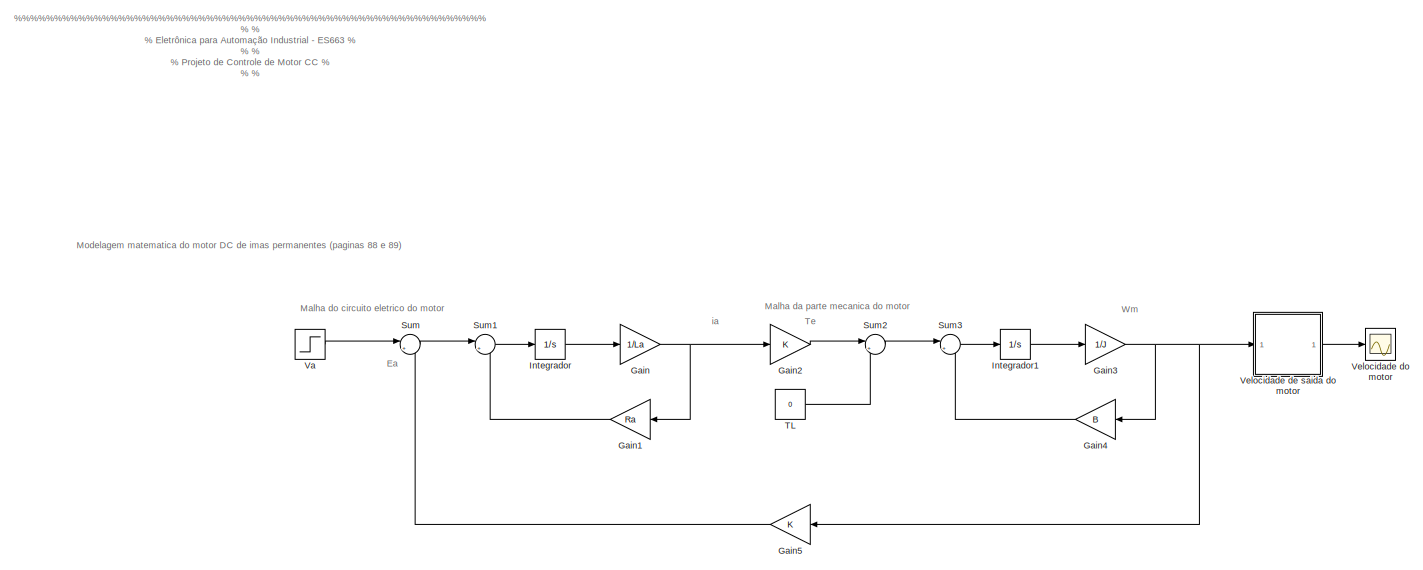
[diagram: root canvas - part 1/4, full width, top band]
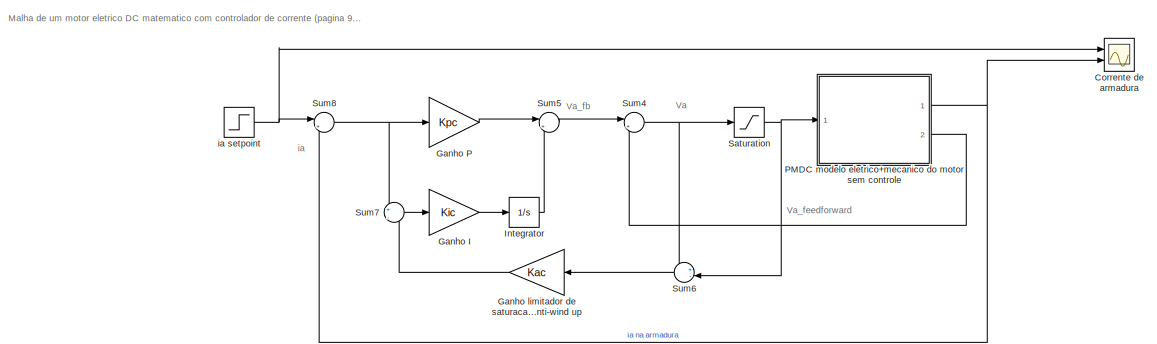
[diagram: root canvas - part 2/4, full width, middle band]
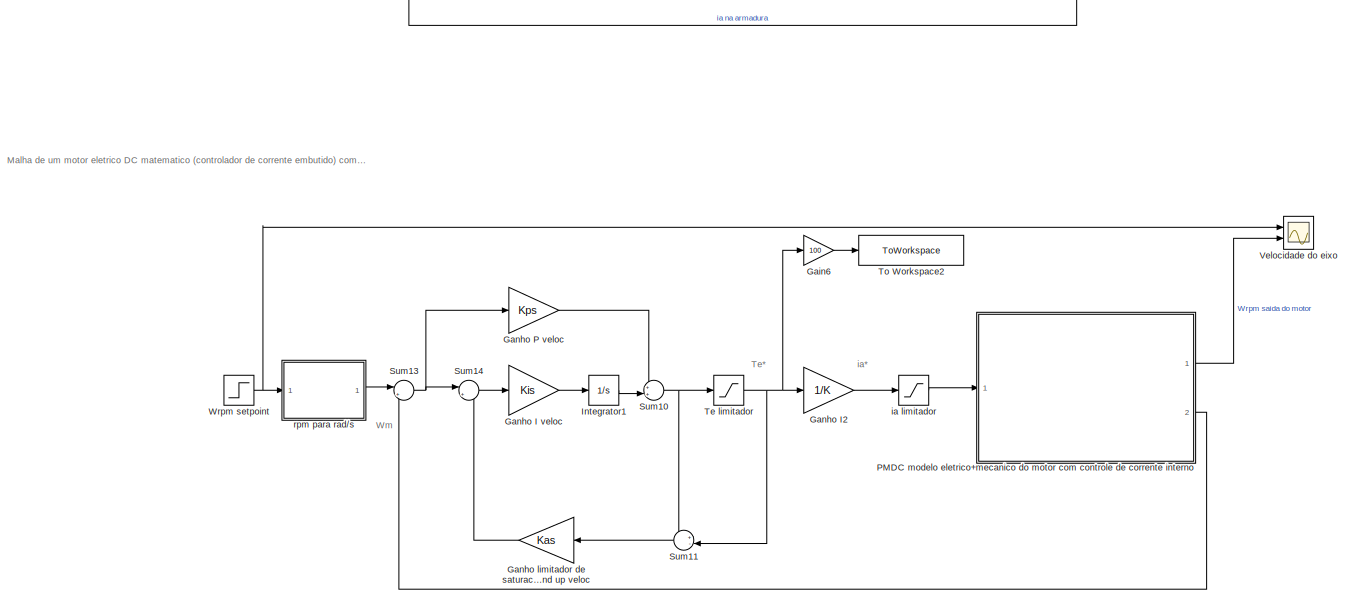
[diagram: root canvas - part 3/4, full width, middle band]
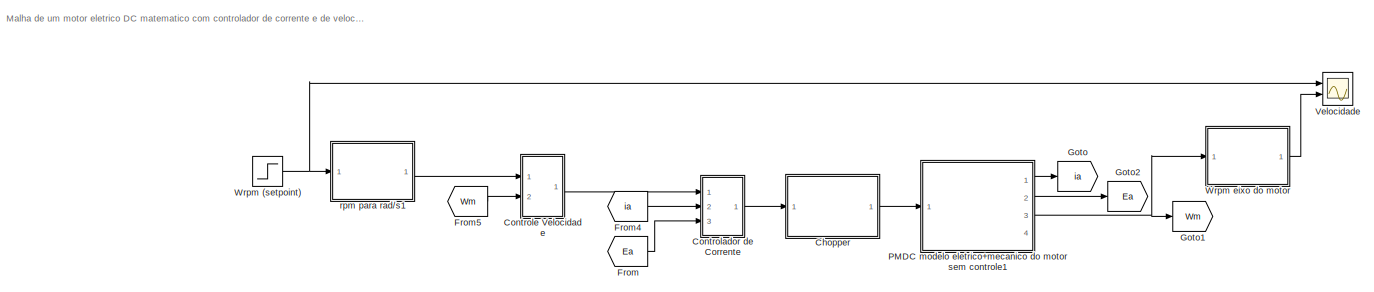
[diagram: root canvas - part 4/4, full width, bottom band]
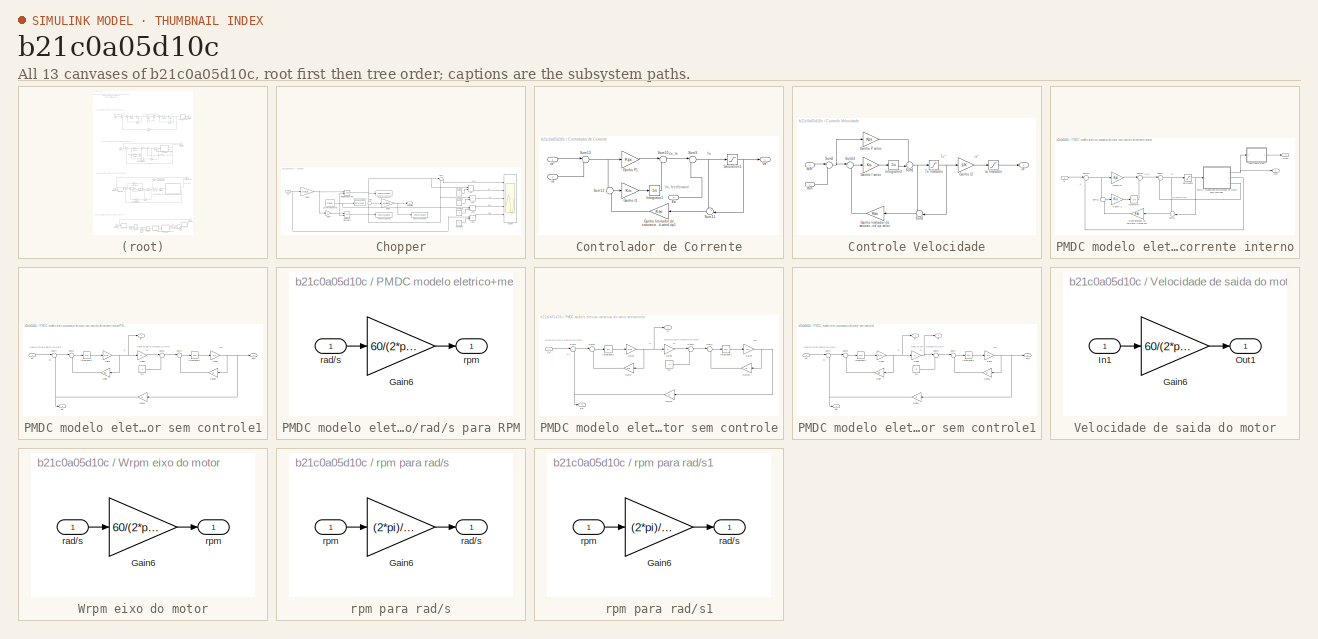
[diagram: thumbnail index - all 13 canvases of the model, root first then tree order]
MODEL slx_b21c0a05d10c
KIND model
CONFIG AbsTol = auto
CONFIG EnableMultiTasking = off
CONFIG FixedStep = auto
CONFIG MaxStep = auto
CONFIG MinStep = auto
CONFIG RelTol = 1e-6
CONFIG SampleTimeConstraint = Unconstrained
CONFIG SolverName = VariableStepAuto
CONFIG StartTime = 0.0
CONFIG StopTime = 0.2
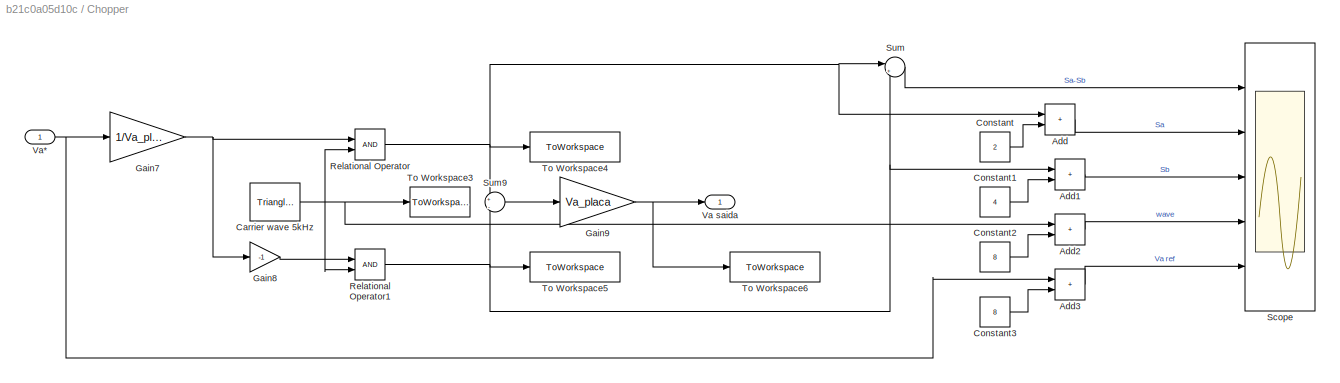
BLOCK [SubSystem] Chopper
  Ports = [1, 1]
  RequestExecContextInheritance = off
BLOCK [Sum] Chopper/Add
  IconShape = rectangular
  Ports = [2, 1]
BLOCK [Sum] Chopper/Add1
  IconShape = rectangular
  Ports = [2, 1]
BLOCK [Sum] Chopper/Add2
  IconShape = rectangular
  Ports = [2, 1]
BLOCK [Sum] Chopper/Add3
  IconShape = rectangular
  Ports = [2, 1]
BLOCK [Reference] Chopper/Carrier wave 5kHz  REF=spsTriangleGeneratorLib/Triangle
Generator
  Ports = [0, 1]
  SourceBlock = spsTriangleGeneratorLib/Triangle\nGenerator
  SourceProductBaseCode = PS
  SourceType = Triangle Generator
BLOCK [Constant] Chopper/Constant
  Value = 2
BLOCK [Constant] Chopper/Constant1
  Value = 4
BLOCK [Constant] Chopper/Constant2
  Value = 8
BLOCK [Constant] Chopper/Constant3
  Value = 8
BLOCK [Gain] Chopper/Gain7
  Gain = 1/Va_placa
BLOCK [Gain] Chopper/Gain8
  Gain = -1
BLOCK [Gain] Chopper/Gain9
  Gain = Va_placa
BLOCK [RelationalOperator] Chopper/Relational Operator
  InputSameDT = off
  OutDataTypeStr = boolean
  Ports = [2, 1]
  RndMeth = Simplest
BLOCK [RelationalOperator] Chopper/Relational Operator1
  InputSameDT = off
  OutDataTypeStr = boolean
  Ports = [2, 1]
  RndMeth = Simplest
BLOCK [Scope] Chopper/Scope
  Floating = off
  NumInputPorts = 5
  Ports = [5]
  ScopeSpecificationString = Simulink.scopes.TimeScopeBlockCfg('CurrentConfiguration', extmgr.ConfigurationSet(extmgr.Configuration('Core','General UI',true),extmgr.Configuration('Core','Source UI',true),extmgr.Configuration('Sources','WiredSimulink',true,'DataLoggingVariableName','ScopeData1'),extmgr.Configuration('Visuals','Time Domain',true,'SerializedDisplays',{struct('MinYLimReal','-6.34073','MaxYLimReal','57.06654','YLa...<+1411ch>
BLOCK [Sum] Chopper/Sum
  Inputs = |+-
  Ports = [2, 1]
BLOCK [Sum] Chopper/Sum9
  Inputs = +|-
  Ports = [2, 1]
BLOCK [ToWorkspace] Chopper/To Workspace3
  FixptAsFi = on
  MaxDataPoints = inf
  Ports = [1]
  SampleTime = -1
  SaveFormat = Timeseries
  VariableName = tri
BLOCK [ToWorkspace] Chopper/To Workspace4
  FixptAsFi = on
  MaxDataPoints = inf
  Ports = [1]
  SampleTime = -1
  SaveFormat = Timeseries
  VariableName = Sa
BLOCK [ToWorkspace] Chopper/To Workspace5
  FixptAsFi = on
  MaxDataPoints = inf
  Ports = [1]
  SampleTime = -1
  SaveFormat = Timeseries
  VariableName = Sb
BLOCK [ToWorkspace] Chopper/To Workspace6
  FixptAsFi = on
  MaxDataPoints = inf
  Ports = [1]
  SampleTime = -1
  SaveFormat = Timeseries
  VariableName = Va_saida
BLOCK [Outport] Chopper/Va saida
BLOCK [Inport] Chopper/Va*
BLOCK [SubSystem] Controlador de Corrente
  Ports = [3, 1]
  RequestExecContextInheritance = off
BLOCK [Inport] Controlador de Corrente/Ea
  Port = 3
BLOCK [Gain] Controlador de Corrente/Ganho I1
  Gain = Kic
BLOCK [Gain] Controlador de Corrente/Ganho P1
  Gain = Kpc
BLOCK [Gain] Controlador de Corrente/Ganho limitador de saturacao anti-wind up1
  Gain = Kac
BLOCK [Integrator] Controlador de Corrente/Integrator1
  Ports = [1, 1]
BLOCK [Saturate] Controlador de Corrente/Saturation1
  LowerLimit = -Va_placa
  UpperLimit = Va_placa
BLOCK [Sum] Controlador de Corrente/Sum10
  Inputs = |++
  Ports = [2, 1]
BLOCK [Sum] Controlador de Corrente/Sum11
  Inputs = +-|
  Ports = [2, 1]
BLOCK [Sum] Controlador de Corrente/Sum12
  Inputs = +|-
  Ports = [2, 1]
BLOCK [Sum] Controlador de Corrente/Sum13
  Inputs = |+-
  Ports = [2, 1]
BLOCK [Sum] Controlador de Corrente/Sum9
  Inputs = |++
  Ports = [2, 1]
BLOCK [Outport] Controlador de Corrente/Va*
BLOCK [Inport] Controlador de Corrente/ia
  Port = 2
BLOCK [Inport] Controlador de Corrente/ia*
BLOCK [SubSystem] Controle Velocidade
  Ports = [2, 1]
  RequestExecContextInheritance = off
BLOCK [Gain] Controle Velocidade/Ganho I veloc
  Gain = Kis
BLOCK [Gain] Controle Velocidade/Ganho I2
  Gain = 1/K
BLOCK [Gain] Controle Velocidade/Ganho P veloc
  Gain = Kps
BLOCK [Gain] Controle Velocidade/Ganho limitador de saturacao anti-wind up veloc
  Gain = Kas
BLOCK [Integrator] Controle Velocidade/Integrator2
  Ports = [1, 1]
BLOCK [Sum] Controle Velocidade/Sum1
  Inputs = ++|
  Ports = [2, 1]
BLOCK [Sum] Controle Velocidade/Sum14
  Inputs = |+-
  Ports = [2, 1]
BLOCK [Sum] Controle Velocidade/Sum2
  Inputs = +-|
  Ports = [2, 1]
BLOCK [Sum] Controle Velocidade/Sum3
  Inputs = |+-
  Ports = [2, 1]
BLOCK [Saturate] Controle Velocidade/Te limitador
  LowerLimit = -Te_placa
  UpperLimit = Te_placa
BLOCK [Inport] Controle Velocidade/Wm
  Port = 2
BLOCK [Inport] Controle Velocidade/Wm*
BLOCK [Saturate] Controle Velocidade/ia limitador
  LowerLimit = -Ia_placa
  UpperLimit = Ia_placa
BLOCK [Outport] Controle Velocidade/ia*
BLOCK [Scope] Corrente de armadura
  Floating = off
  NumInputPorts = 2
  Ports = [2]
  ScopeSpecificationString = Simulink.scopes.TimeScopeBlockCfg('CurrentConfiguration', extmgr.ConfigurationSet(extmgr.Configuration('Core','General UI',true),extmgr.Configuration('Core','Source UI',true),extmgr.Configuration('Sources','WiredSimulink',true,'DataLoggingVariableName','ScopeData2'),extmgr.Configuration('Visuals','Time Domain',true,'SerializedDisplays',{struct('MinYLimReal','-8.87249','MaxYLimReal','23.20805','YLa...<+1389ch>
BLOCK [From] From
  GotoTag = Ea
BLOCK [From] From4
  GotoTag = ia
BLOCK [From] From5
  GotoTag = Wm
BLOCK [Gain] Gain
  Gain = 1/La
BLOCK [Gain] Gain1
  Gain = Ra
BLOCK [Gain] Gain2
  Gain = K
BLOCK [Gain] Gain3
  Gain = 1/J
BLOCK [Gain] Gain4
  Gain = B
BLOCK [Gain] Gain5
  Gain = K
BLOCK [Gain] Gain6
  Gain = 100
BLOCK [Gain] Ganho I
  Gain = Kic
BLOCK [Gain] Ganho I veloc
  Gain = Kis
BLOCK [Gain] Ganho I2
  Gain = 1/K
BLOCK [Gain] Ganho P
  Gain = Kpc
BLOCK [Gain] Ganho P veloc
  Gain = Kps
BLOCK [Gain] Ganho limitador de saturacao anti-wind up
  Gain = Kac
BLOCK [Gain] Ganho limitador de saturacao anti-wind up veloc
  Gain = Kas
BLOCK [Goto] Goto
  GotoTag = ia
BLOCK [Goto] Goto1
  GotoTag = Wm
BLOCK [Goto] Goto2
  GotoTag = Ea
BLOCK [Integrator] Integrador
  Ports = [1, 1]
BLOCK [Integrator] Integrador1
  Ports = [1, 1]
BLOCK [Integrator] Integrator
  Ports = [1, 1]
BLOCK [Integrator] Integrator1
  Ports = [1, 1]
BLOCK [SubSystem] PMDC modelo eletrico+mecanico do motor com controle de corrente interno
  Ports = [1, 2]
  RequestExecContextInheritance = off
BLOCK [Gain] PMDC modelo eletrico+mecanico do motor com controle de corrente interno/Ganho I1
  Gain = Kic
BLOCK [Gain] PMDC modelo eletrico+mecanico do motor com controle de corrente interno/Ganho P1
  Gain = Kpc
BLOCK [Gain] PMDC modelo eletrico+mecanico do motor com controle de corrente interno/Ganho limitador de saturacao anti-wind up1
  Gain = Kac
BLOCK [Integrator] PMDC modelo eletrico+mecanico do motor com controle de corrente interno/Integrator1
  Ports = [1, 1]
BLOCK [SubSystem] PMDC modelo eletrico+mecanico do motor com controle de corrente interno/PMDC modelo eletrico+mecanico do motor sem controle1
  Ports = [1, 3]
  RequestExecContextInheritance = off
BLOCK [Outport] PMDC modelo eletrico+mecanico do motor com controle de corrente interno/PMDC modelo eletrico+mecanico do motor sem controle1/Ea
  Port = 3
BLOCK [Gain] PMDC modelo eletrico+mecanico do motor com controle de corrente interno/PMDC modelo eletrico+mecanico do motor sem controle1/Gain10
  Gain = B
BLOCK [Gain] PMDC modelo eletrico+mecanico do motor com controle de corrente interno/PMDC modelo eletrico+mecanico do motor sem controle1/Gain11
  Gain = K
BLOCK [Gain] PMDC modelo eletrico+mecanico do motor com controle de corrente interno/PMDC modelo eletrico+mecanico do motor sem controle1/Gain6
  Gain = 1/La
BLOCK [Gain] PMDC modelo eletrico+mecanico do motor com controle de corrente interno/PMDC modelo eletrico+mecanico do motor sem controle1/Gain7
  Gain = Ra
BLOCK [Gain] PMDC modelo eletrico+mecanico do motor com controle de corrente interno/PMDC modelo eletrico+mecanico do motor sem controle1/Gain8
  Gain = K
BLOCK [Gain] PMDC modelo eletrico+mecanico do motor com controle de corrente interno/PMDC modelo eletrico+mecanico do motor sem controle1/Gain9
  Gain = 1/J
BLOCK [Integrator] PMDC modelo eletrico+mecanico do motor com controle de corrente interno/PMDC modelo eletrico+mecanico do motor sem controle1/Integrador2
  Ports = [1, 1]
BLOCK [Integrator] PMDC modelo eletrico+mecanico do motor com controle de corrente interno/PMDC modelo eletrico+mecanico do motor sem controle1/Integrador3
  Ports = [1, 1]
BLOCK [Sum] PMDC modelo eletrico+mecanico do motor com controle de corrente interno/PMDC modelo eletrico+mecanico do motor sem controle1/Sum4
  Inputs = |+-
  Ports = [2, 1]
BLOCK [Sum] PMDC modelo eletrico+mecanico do motor com controle de corrente interno/PMDC modelo eletrico+mecanico do motor sem controle1/Sum5
  Inputs = |+-
  Ports = [2, 1]
BLOCK [Sum] PMDC modelo eletrico+mecanico do motor com controle de corrente interno/PMDC modelo eletrico+mecanico do motor sem controle1/Sum6
  Inputs = |+-
  Ports = [2, 1]
BLOCK [Sum] PMDC modelo eletrico+mecanico do motor com controle de corrente interno/PMDC modelo eletrico+mecanico do motor sem controle1/Sum7
  Inputs = |+-
  Ports = [2, 1]
BLOCK [Constant] PMDC modelo eletrico+mecanico do motor com controle de corrente interno/PMDC modelo eletrico+mecanico do motor sem controle1/TL1
  Value = 0
BLOCK [Inport] PMDC modelo eletrico+mecanico do motor com controle de corrente interno/PMDC modelo eletrico+mecanico do motor sem controle1/Va
BLOCK [Outport] PMDC modelo eletrico+mecanico do motor com controle de corrente interno/PMDC modelo eletrico+mecanico do motor sem controle1/Wm
BLOCK [Outport] PMDC modelo eletrico+mecanico do motor com controle de corrente interno/PMDC modelo eletrico+mecanico do motor sem controle1/ia
  Port = 2
BLOCK [Saturate] PMDC modelo eletrico+mecanico do motor com controle de corrente interno/Saturation1
  LowerLimit = -Va_placa
  UpperLimit = Va_placa
BLOCK [Sum] PMDC modelo eletrico+mecanico do motor com controle de corrente interno/Sum10
  Inputs = |++
  Ports = [2, 1]
BLOCK [Sum] PMDC modelo eletrico+mecanico do motor com controle de corrente interno/Sum11
  Inputs = +-|
  Ports = [2, 1]
BLOCK [Sum] PMDC modelo eletrico+mecanico do motor com controle de corrente interno/Sum12
  Inputs = +|-
  Ports = [2, 1]
BLOCK [Sum] PMDC modelo eletrico+mecanico do motor com controle de corrente interno/Sum13
  Inputs = |+-
  Ports = [2, 1]
BLOCK [Sum] PMDC modelo eletrico+mecanico do motor com controle de corrente interno/Sum9
  Inputs = |++
  Ports = [2, 1]
BLOCK [Outport] PMDC modelo eletrico+mecanico do motor com controle de corrente interno/Wm
  Port = 2
BLOCK [Outport] PMDC modelo eletrico+mecanico do motor com controle de corrente interno/Wrpm
BLOCK [Inport] PMDC modelo eletrico+mecanico do motor com controle de corrente interno/ia
BLOCK [SubSystem] PMDC modelo eletrico+mecanico do motor com controle de corrente interno/rad//s para RPM
  Ports = [1, 1]
  RequestExecContextInheritance = off
BLOCK [Gain] PMDC modelo eletrico+mecanico do motor com controle de corrente interno/rad//s para RPM/Gain6
  Gain = 60/(2*pi)
BLOCK [Inport] PMDC modelo eletrico+mecanico do motor com controle de corrente interno/rad//s para RPM/rad//s
BLOCK [Outport] PMDC modelo eletrico+mecanico do motor com controle de corrente interno/rad//s para RPM/rpm
BLOCK [SubSystem] PMDC modelo eletrico+mecanico do motor sem controle
  Ports = [1, 2]
  RequestExecContextInheritance = off
BLOCK [Outport] PMDC modelo eletrico+mecanico do motor sem controle/Ea
  Port = 2
BLOCK [Gain] PMDC modelo eletrico+mecanico do motor sem controle/Gain10
  Gain = B
BLOCK [Gain] PMDC modelo eletrico+mecanico do motor sem controle/Gain11
  Gain = K
BLOCK [Gain] PMDC modelo eletrico+mecanico do motor sem controle/Gain6
  Gain = 1/La
BLOCK [Gain] PMDC modelo eletrico+mecanico do motor sem controle/Gain7
  Gain = Ra
BLOCK [Gain] PMDC modelo eletrico+mecanico do motor sem controle/Gain8
  Gain = K
BLOCK [Gain] PMDC modelo eletrico+mecanico do motor sem controle/Gain9
  Gain = 1/J
BLOCK [Integrator] PMDC modelo eletrico+mecanico do motor sem controle/Integrador2
  Ports = [1, 1]
BLOCK [Integrator] PMDC modelo eletrico+mecanico do motor sem controle/Integrador3
  Ports = [1, 1]
BLOCK [Sum] PMDC modelo eletrico+mecanico do motor sem controle/Sum4
  Inputs = |+-
  Ports = [2, 1]
BLOCK [Sum] PMDC modelo eletrico+mecanico do motor sem controle/Sum5
  Inputs = |+-
  Ports = [2, 1]
BLOCK [Sum] PMDC modelo eletrico+mecanico do motor sem controle/Sum6
  Inputs = |+-
  Ports = [2, 1]
BLOCK [Sum] PMDC modelo eletrico+mecanico do motor sem controle/Sum7
  Inputs = |+-
  Ports = [2, 1]
BLOCK [Constant] PMDC modelo eletrico+mecanico do motor sem controle/TL1
  Value = 0
BLOCK [Inport] PMDC modelo eletrico+mecanico do motor sem controle/Va
BLOCK [Outport] PMDC modelo eletrico+mecanico do motor sem controle/ia
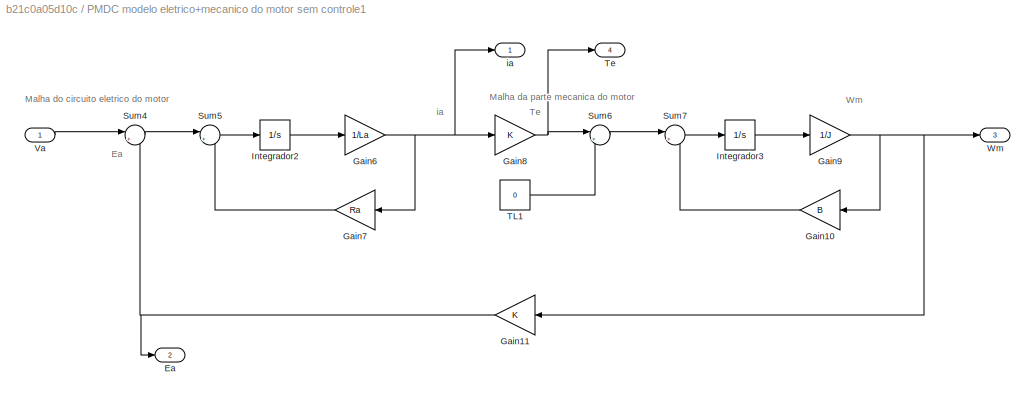
BLOCK [SubSystem] PMDC modelo eletrico+mecanico do motor sem controle1
  Ports = [1, 4]
  RequestExecContextInheritance = off
BLOCK [Outport] PMDC modelo eletrico+mecanico do motor sem controle1/Ea
  Port = 2
BLOCK [Gain] PMDC modelo eletrico+mecanico do motor sem controle1/Gain10
  Gain = B
BLOCK [Gain] PMDC modelo eletrico+mecanico do motor sem controle1/Gain11
  Gain = K
BLOCK [Gain] PMDC modelo eletrico+mecanico do motor sem controle1/Gain6
  Gain = 1/La
BLOCK [Gain] PMDC modelo eletrico+mecanico do motor sem controle1/Gain7
  Gain = Ra
BLOCK [Gain] PMDC modelo eletrico+mecanico do motor sem controle1/Gain8
  Gain = K
BLOCK [Gain] PMDC modelo eletrico+mecanico do motor sem controle1/Gain9
  Gain = 1/J
BLOCK [Integrator] PMDC modelo eletrico+mecanico do motor sem controle1/Integrador2
  Ports = [1, 1]
BLOCK [Integrator] PMDC modelo eletrico+mecanico do motor sem controle1/Integrador3
  Ports = [1, 1]
BLOCK [Sum] PMDC modelo eletrico+mecanico do motor sem controle1/Sum4
  Inputs = |+-
  Ports = [2, 1]
BLOCK [Sum] PMDC modelo eletrico+mecanico do motor sem controle1/Sum5
  Inputs = |+-
  Ports = [2, 1]
BLOCK [Sum] PMDC modelo eletrico+mecanico do motor sem controle1/Sum6
  Inputs = |+-
  Ports = [2, 1]
BLOCK [Sum] PMDC modelo eletrico+mecanico do motor sem controle1/Sum7
  Inputs = |+-
  Ports = [2, 1]
BLOCK [Constant] PMDC modelo eletrico+mecanico do motor sem controle1/TL1
  Value = 0
BLOCK [Outport] PMDC modelo eletrico+mecanico do motor sem controle1/Te
  Port = 4
BLOCK [Inport] PMDC modelo eletrico+mecanico do motor sem controle1/Va
BLOCK [Outport] PMDC modelo eletrico+mecanico do motor sem controle1/Wm
  Port = 3
BLOCK [Outport] PMDC modelo eletrico+mecanico do motor sem controle1/ia
BLOCK [Saturate] Saturation
  LowerLimit = -Va_placa
  UpperLimit = Va_placa
BLOCK [Sum] Sum
  Inputs = |+-
  Ports = [2, 1]
BLOCK [Sum] Sum1
  Inputs = |+-
  Ports = [2, 1]
BLOCK [Sum] Sum10
  Inputs = ++|
  Ports = [2, 1]
BLOCK [Sum] Sum11
  Inputs = +-|
  Ports = [2, 1]
BLOCK [Sum] Sum13
  Inputs = |+-
  Ports = [2, 1]
BLOCK [Sum] Sum14
  Inputs = |+-
  Ports = [2, 1]
BLOCK [Sum] Sum2
  Inputs = |+-
  Ports = [2, 1]
BLOCK [Sum] Sum3
  Inputs = |+-
  Ports = [2, 1]
BLOCK [Sum] Sum4
  Inputs = |++
  Ports = [2, 1]
BLOCK [Sum] Sum5
  Inputs = |++
  Ports = [2, 1]
BLOCK [Sum] Sum6
  Inputs = +-|
  Ports = [2, 1]
BLOCK [Sum] Sum7
  Inputs = +|-
  Ports = [2, 1]
BLOCK [Sum] Sum8
  Inputs = |+-
  Ports = [2, 1]
BLOCK [Constant] TL
  Value = 0
BLOCK [Saturate] Te limitador
  LowerLimit = -Te_placa
  UpperLimit = Te_placa
BLOCK [ToWorkspace] To Workspace2
  MaxDataPoints = inf
  Ports = [1]
  SampleTime = -1
  SaveFormat = Timeseries
  VariableName = Te_100
BLOCK [Step] Va
  After = 140
  SampleTime = 0
  Time = 0.05
BLOCK [Scope] Velocidade
  Floating = off
  NumInputPorts = 2
  Ports = [2]
  ScopeSpecificationString = Simulink.scopes.TimeScopeBlockCfg('CurrentConfiguration', extmgr.ConfigurationSet(extmgr.Configuration('Core','General UI',true),extmgr.Configuration('Core','Source UI',true),extmgr.Configuration('Sources','WiredSimulink',true),extmgr.Configuration('Visuals','Time Domain',true,'SerializedDisplays',{struct('MinYLimReal','-326.25539','MaxYLimReal','2936.29853','YLabelReal','','MinYLimMag',' 0.00000'...<+1402ch>
BLOCK [SubSystem] Velocidade de saida do motor
  Ports = [1, 1]
  RequestExecContextInheritance = off
BLOCK [Gain] Velocidade de saida do motor/Gain6
  Gain = 60/(2*pi)
BLOCK [Inport] Velocidade de saida do motor/In1
BLOCK [Outport] Velocidade de saida do motor/Out1
BLOCK [Scope] Velocidade do eixo
  Floating = off
  NumInputPorts = 2
  Ports = [2]
  ScopeSpecificationString = Simulink.scopes.TimeScopeBlockCfg('CurrentConfiguration', extmgr.ConfigurationSet(extmgr.Configuration('Core','General UI',true),extmgr.Configuration('Core','Source UI',true),extmgr.Configuration('Sources','WiredSimulink',true,'DataLoggingVariableName','ScopeData1'),extmgr.Configuration('Visuals','Time Domain',true,'SerializedDisplays',{struct('MinYLimReal','-326.25411','MaxYLimReal','2936.28701',...<+1410ch>
BLOCK [Scope] Velocidade do motor
  Floating = off
  NumInputPorts = 1
  Ports = [1]
  ScopeSpecificationString = Simulink.scopes.TimeScopeBlockCfg('CurrentConfiguration', extmgr.ConfigurationSet(extmgr.Configuration('Core','General UI',true),extmgr.Configuration('Core','Source UI',true),extmgr.Configuration('Sources','WiredSimulink',true,'DataLoggingVariableName','ScopeData3'),extmgr.Configuration('Visuals','Time Domain',true,'SerializedDisplays',{struct('MinYLimReal','-504.86491','MaxYLimReal','4543.7842','...<+1399ch>
BLOCK [Step] Wrpm (setpoint)
  After = 2500
  SampleTime = 0
  Time = 0.05
BLOCK [SubSystem] Wrpm eixo do motor
  Ports = [1, 1]
  RequestExecContextInheritance = off
BLOCK [Gain] Wrpm eixo do motor/Gain6
  Gain = 60/(2*pi)
BLOCK [Inport] Wrpm eixo do motor/rad//s
BLOCK [Outport] Wrpm eixo do motor/rpm
BLOCK [Step] Wrpm setpoint
  After = 2500
  SampleTime = 0
  Time = 0.05
BLOCK [Saturate] ia limitador
  LowerLimit = -Ia_placa
  UpperLimit = Ia_placa
BLOCK [Step] ia setpoint
  After = 20
  SampleTime = 0
  Time = 0.005
BLOCK [SubSystem] rpm para rad//s
  Ports = [1, 1]
  RequestExecContextInheritance = off
BLOCK [Gain] rpm para rad//s/Gain6
  Gain = (2*pi)/60
BLOCK [Outport] rpm para rad//s/rad//s
BLOCK [Inport] rpm para rad//s/rpm
BLOCK [SubSystem] rpm para rad//s1
  Ports = [1, 1]
  RequestExecContextInheritance = off
BLOCK [Gain] rpm para rad//s1/Gain6
  Gain = (2*pi)/60
BLOCK [Outport] rpm para rad//s1/rad//s
BLOCK [Inport] rpm para rad//s1/rpm
ANNOTATION (root): %%%%%%%%%%%%%%%%%%%%%%%%%%%%%%%%%%%%%%%%%%%%%%%%%%%%%%%%%%% % % % Eletrônica para Automação Industrial - ES663 % % % % Projeto de Controle de Motor CC % % % % Igor Barros Teixeira - RA 217947 % % Matheus Santos Sano - RA 222370 % % % %%%%%%%%%%%%%%%%%%%%%%%%%%%%%%%%%%%%%%%%%%%%%%%%%%%%%%%%%%%
ANNOTATION (root): Ea
ANNOTATION (root): Malha da parte mecanica do motor
ANNOTATION (root): Malha de um motor eletrico DC matematico (controlador de corrente embutido) com controlador de velocidade (pagina 91)
ANNOTATION (root): Malha de um motor eletrico DC matematico com controlador de corrente (pagina 90)
ANNOTATION (root): Malha de um motor eletrico DC matematico com controlador de corrente e de velocidade usando como interface um chopper matematico (pagina 92)
ANNOTATION (root): Malha do circuito eletrico do motor
ANNOTATION (root): Modelagem matematica do motor DC de imas permanentes (paginas 88 e 89)
ANNOTATION (root): Te
ANNOTATION (root): Te*
ANNOTATION (root): Va
ANNOTATION (root): Va_fb
ANNOTATION (root): Va_feedforward
ANNOTATION (root): Wm
ANNOTATION (root): ia
ANNOTATION (root): ia*
ANNOTATION Controlador de Corrente: Va
ANNOTATION Controlador de Corrente: Va_fb
ANNOTATION Controlador de Corrente: Va_feedforward
ANNOTATION Controle Velocidade: Te*
ANNOTATION Controle Velocidade: ia*
ANNOTATION PMDC modelo eletrico+mecanico do motor com controle de corrente interno: Va
ANNOTATION PMDC modelo eletrico+mecanico do motor com controle de corrente interno: Va_fb
ANNOTATION PMDC modelo eletrico+mecanico do motor com controle de corrente interno: Va_feedforward
ANNOTATION PMDC modelo eletrico+mecanico do motor com controle de corrente interno: ia
ANNOTATION PMDC modelo eletrico+mecanico do motor com controle de corrente interno/PMDC modelo eletrico+mecanico do motor sem controle1: Ea
ANNOTATION PMDC modelo eletrico+mecanico do motor com controle de corrente interno/PMDC modelo eletrico+mecanico do motor sem controle1: Malha da parte mecanica do motor
ANNOTATION PMDC modelo eletrico+mecanico do motor com controle de corrente interno/PMDC modelo eletrico+mecanico do motor sem controle1: Malha do circuito eletrico do motor
ANNOTATION PMDC modelo eletrico+mecanico do motor com controle de corrente interno/PMDC modelo eletrico+mecanico do motor sem controle1: Te
ANNOTATION PMDC modelo eletrico+mecanico do motor com controle de corrente interno/PMDC modelo eletrico+mecanico do motor sem controle1: Wm
ANNOTATION PMDC modelo eletrico+mecanico do motor com controle de corrente interno/PMDC modelo eletrico+mecanico do motor sem controle1: ia
ANNOTATION PMDC modelo eletrico+mecanico do motor sem controle: Ea
ANNOTATION PMDC modelo eletrico+mecanico do motor sem controle: Malha da parte mecanica do motor
ANNOTATION PMDC modelo eletrico+mecanico do motor sem controle: Malha do circuito eletrico do motor
ANNOTATION PMDC modelo eletrico+mecanico do motor sem controle: Te
ANNOTATION PMDC modelo eletrico+mecanico do motor sem controle: Wm
ANNOTATION PMDC modelo eletrico+mecanico do motor sem controle: ia
ANNOTATION PMDC modelo eletrico+mecanico do motor sem controle1: Ea
ANNOTATION PMDC modelo eletrico+mecanico do motor sem controle1: Malha da parte mecanica do motor
ANNOTATION PMDC modelo eletrico+mecanico do motor sem controle1: Malha do circuito eletrico do motor
ANNOTATION PMDC modelo eletrico+mecanico do motor sem controle1: Te
ANNOTATION PMDC modelo eletrico+mecanico do motor sem controle1: Wm
ANNOTATION PMDC modelo eletrico+mecanico do motor sem controle1: ia
LINE Chopper/Add1:1 -> Chopper/Scope:3
LINE Chopper/Add2:1 -> Chopper/Scope:4
LINE Chopper/Add3:1 -> Chopper/Scope:5
LINE Chopper/Add:1 -> Chopper/Scope:2
NET Chopper/Carrier wave 5kHz:1 -> Chopper/Add2:1, Chopper/Relational Operator1:2, Chopper/Relational Operator:2, Chopper/To Workspace3:1
LINE Chopper/Constant1:1 -> Chopper/Add1:2
LINE Chopper/Constant2:1 -> Chopper/Add2:2
LINE Chopper/Constant3:1 -> Chopper/Add3:2
LINE Chopper/Constant:1 -> Chopper/Add:2
NET Chopper/Gain7:1 -> Chopper/Gain8:1, Chopper/Relational Operator:1
LINE Chopper/Gain8:1 -> Chopper/Relational Operator1:1
NET Chopper/Gain9:1 -> Chopper/To Workspace6:1, Chopper/Va saida:1
NET Chopper/Relational Operator1:1 -> Chopper/Add1:1, Chopper/Sum9:2, Chopper/Sum:2, Chopper/To Workspace5:1
NET Chopper/Relational Operator:1 -> Chopper/Add:1, Chopper/Sum9:1, Chopper/Sum:1, Chopper/To Workspace4:1
LINE Chopper/Sum9:1 -> Chopper/Gain9:1
LINE Chopper/Sum:1 -> Chopper/Scope:1
NET Chopper/Va*:1 -> Chopper/Add3:1, Chopper/Gain7:1
LINE Chopper:1 -> PMDC modelo eletrico+mecanico do motor sem controle1:1
LINE Controlador de Corrente/Ea:1 -> Controlador de Corrente/Sum9:2
LINE Controlador de Corrente/Ganho I1:1 -> Controlador de Corrente/Integrator1:1
LINE Controlador de Corrente/Ganho P1:1 -> Controlador de Corrente/Sum10:1
LINE Controlador de Corrente/Ganho limitador de saturacao anti-wind up1:1 -> Controlador de Corrente/Sum12:2
LINE Controlador de Corrente/Integrator1:1 -> Controlador de Corrente/Sum10:2
NET Controlador de Corrente/Saturation1:1 -> Controlador de Corrente/Sum11:2, Controlador de Corrente/Va*:1
LINE Controlador de Corrente/Sum10:1 -> Controlador de Corrente/Sum9:1
LINE Controlador de Corrente/Sum11:1 -> Controlador de Corrente/Ganho limitador de saturacao anti-wind up1:1
LINE Controlador de Corrente/Sum12:1 -> Controlador de Corrente/Ganho I1:1
NET Controlador de Corrente/Sum13:1 -> Controlador de Corrente/Ganho P1:1, Controlador de Corrente/Sum12:1
NET Controlador de Corrente/Sum9:1 -> Controlador de Corrente/Saturation1:1, Controlador de Corrente/Sum11:1
LINE Controlador de Corrente/ia*:1 -> Controlador de Corrente/Sum13:1
LINE Controlador de Corrente/ia:1 -> Controlador de Corrente/Sum13:2
LINE Controlador de Corrente:1 -> Chopper:1
LINE Controle Velocidade/Ganho I veloc:1 -> Controle Velocidade/Integrator2:1
LINE Controle Velocidade/Ganho I2:1 -> Controle Velocidade/ia limitador:1
LINE Controle Velocidade/Ganho P veloc:1 -> Controle Velocidade/Sum1:1
LINE Controle Velocidade/Ganho limitador de saturacao anti-wind up veloc:1 -> Controle Velocidade/Sum14:2
LINE Controle Velocidade/Integrator2:1 -> Controle Velocidade/Sum1:2
LINE Controle Velocidade/Sum14:1 -> Controle Velocidade/Ganho I veloc:1
NET Controle Velocidade/Sum1:1 -> Controle Velocidade/Sum2:1, Controle Velocidade/Te limitador:1
LINE Controle Velocidade/Sum2:1 -> Controle Velocidade/Ganho limitador de saturacao anti-wind up veloc:1
NET Controle Velocidade/Sum3:1 -> Controle Velocidade/Ganho P veloc:1, Controle Velocidade/Sum14:1
NET Controle Velocidade/Te limitador:1 -> Controle Velocidade/Ganho I2:1, Controle Velocidade/Sum2:2
LINE Controle Velocidade/Wm*:1 -> Controle Velocidade/Sum3:1
LINE Controle Velocidade/Wm:1 -> Controle Velocidade/Sum3:2
LINE Controle Velocidade/ia limitador:1 -> Controle Velocidade/ia*:1
LINE Controle Velocidade:1 -> Controlador de Corrente:1
LINE From4:1 -> Controlador de Corrente:2
LINE From5:1 -> Controle Velocidade:2
LINE From:1 -> Controlador de Corrente:3
LINE Gain1:1 -> Sum1:2
LINE Gain2:1 -> Sum2:1
NET Gain3:1 -> Gain4:1, Gain5:1, Velocidade de saida do motor:1
LINE Gain4:1 -> Sum3:2
LINE Gain5:1 -> Sum:2
LINE Gain6:1 -> To Workspace2:1
NET Gain:1 -> Gain1:1, Gain2:1
LINE Ganho I veloc:1 -> Integrator1:1
LINE Ganho I2:1 -> ia limitador:1
LINE Ganho I:1 -> Integrator:1
LINE Ganho P veloc:1 -> Sum10:1
LINE Ganho P:1 -> Sum5:1
LINE Ganho limitador de saturacao anti-wind up veloc:1 -> Sum14:2
LINE Ganho limitador de saturacao anti-wind up:1 -> Sum7:2
LINE Integrador1:1 -> Gain3:1
LINE Integrador:1 -> Gain:1
LINE Integrator1:1 -> Sum10:2
LINE Integrator:1 -> Sum5:2
LINE PMDC modelo eletrico+mecanico do motor com controle de corrente interno/Ganho I1:1 -> PMDC modelo eletrico+mecanico do motor com controle de corrente interno/Integrator1:1
LINE PMDC modelo eletrico+mecanico do motor com controle de corrente interno/Ganho P1:1 -> PMDC modelo eletrico+mecanico do motor com controle de corrente interno/Sum10:1
LINE PMDC modelo eletrico+mecanico do motor com controle de corrente interno/Ganho limitador de saturacao anti-wind up1:1 -> PMDC modelo eletrico+mecanico do motor com controle de corrente interno/Sum12:2
LINE PMDC modelo eletrico+mecanico do motor com controle de corrente interno/Integrator1:1 -> PMDC modelo eletrico+mecanico do motor com controle de corrente interno/Sum10:2
LINE PMDC modelo eletrico+mecanico do motor com controle de corrente interno/PMDC modelo eletrico+mecanico do motor sem controle1/Gain10:1 -> PMDC modelo eletrico+mecanico do motor com controle de corrente interno/PMDC modelo eletrico+mecanico do motor sem controle1/Sum7:2
NET PMDC modelo eletrico+mecanico do motor com controle de corrente interno/PMDC modelo eletrico+mecanico do motor sem controle1/Gain11:1 -> PMDC modelo eletrico+mecanico do motor com controle de corrente interno/PMDC modelo eletrico+mecanico do motor sem controle1/Ea:1, PMDC modelo eletrico+mecanico do motor com controle de corrente interno/PMDC modelo eletrico+mecanico do motor sem controle1/Sum4:2
NET PMDC modelo eletrico+mecanico do motor com controle de corrente interno/PMDC modelo eletrico+mecanico do motor sem controle1/Gain6:1 -> PMDC modelo eletrico+mecanico do motor com controle de corrente interno/PMDC modelo eletrico+mecanico do motor sem controle1/Gain7:1, PMDC modelo eletrico+mecanico do motor com controle de corrente interno/PMDC modelo eletrico+mecanico do motor sem controle1/Gain8:1, PMDC modelo eletrico+mecanico do motor com controle de corrente interno/PMDC modelo eletrico+mecanico do motor sem controle1/ia:1
LINE PMDC modelo eletrico+mecanico do motor com controle de corrente interno/PMDC modelo eletrico+mecanico do motor sem controle1/Gain7:1 -> PMDC modelo eletrico+mecanico do motor com controle de corrente interno/PMDC modelo eletrico+mecanico do motor sem controle1/Sum5:2
LINE PMDC modelo eletrico+mecanico do motor com controle de corrente interno/PMDC modelo eletrico+mecanico do motor sem controle1/Gain8:1 -> PMDC modelo eletrico+mecanico do motor com controle de corrente interno/PMDC modelo eletrico+mecanico do motor sem controle1/Sum6:1
NET PMDC modelo eletrico+mecanico do motor com controle de corrente interno/PMDC modelo eletrico+mecanico do motor sem controle1/Gain9:1 -> PMDC modelo eletrico+mecanico do motor com controle de corrente interno/PMDC modelo eletrico+mecanico do motor sem controle1/Gain10:1, PMDC modelo eletrico+mecanico do motor com controle de corrente interno/PMDC modelo eletrico+mecanico do motor sem controle1/Gain11:1, PMDC modelo eletrico+mecanico do motor com controle de corrente interno/PMDC modelo eletrico+mecanico do motor sem controle1/Wm:1
LINE PMDC modelo eletrico+mecanico do motor com controle de corrente interno/PMDC modelo eletrico+mecanico do motor sem controle1/Integrador2:1 -> PMDC modelo eletrico+mecanico do motor com controle de corrente interno/PMDC modelo eletrico+mecanico do motor sem controle1/Gain6:1
LINE PMDC modelo eletrico+mecanico do motor com controle de corrente interno/PMDC modelo eletrico+mecanico do motor sem controle1/Integrador3:1 -> PMDC modelo eletrico+mecanico do motor com controle de corrente interno/PMDC modelo eletrico+mecanico do motor sem controle1/Gain9:1
LINE PMDC modelo eletrico+mecanico do motor com controle de corrente interno/PMDC modelo eletrico+mecanico do motor sem controle1/Sum4:1 -> PMDC modelo eletrico+mecanico do motor com controle de corrente interno/PMDC modelo eletrico+mecanico do motor sem controle1/Sum5:1
LINE PMDC modelo eletrico+mecanico do motor com controle de corrente interno/PMDC modelo eletrico+mecanico do motor sem controle1/Sum5:1 -> PMDC modelo eletrico+mecanico do motor com controle de corrente interno/PMDC modelo eletrico+mecanico do motor sem controle1/Integrador2:1
LINE PMDC modelo eletrico+mecanico do motor com controle de corrente interno/PMDC modelo eletrico+mecanico do motor sem controle1/Sum6:1 -> PMDC modelo eletrico+mecanico do motor com controle de corrente interno/PMDC modelo eletrico+mecanico do motor sem controle1/Sum7:1
LINE PMDC modelo eletrico+mecanico do motor com controle de corrente interno/PMDC modelo eletrico+mecanico do motor sem controle1/Sum7:1 -> PMDC modelo eletrico+mecanico do motor com controle de corrente interno/PMDC modelo eletrico+mecanico do motor sem controle1/Integrador3:1
LINE PMDC modelo eletrico+mecanico do motor com controle de corrente interno/PMDC modelo eletrico+mecanico do motor sem controle1/TL1:1 -> PMDC modelo eletrico+mecanico do motor com controle de corrente interno/PMDC modelo eletrico+mecanico do motor sem controle1/Sum6:2
LINE PMDC modelo eletrico+mecanico do motor com controle de corrente interno/PMDC modelo eletrico+mecanico do motor sem controle1/Va:1 -> PMDC modelo eletrico+mecanico do motor com controle de corrente interno/PMDC modelo eletrico+mecanico do motor sem controle1/Sum4:1
NET PMDC modelo eletrico+mecanico do motor com controle de corrente interno/PMDC modelo eletrico+mecanico do motor sem controle1:1 -> PMDC modelo eletrico+mecanico do motor com controle de corrente interno/Wm:1, PMDC modelo eletrico+mecanico do motor com controle de corrente interno/rad//s para RPM:1
LINE PMDC modelo eletrico+mecanico do motor com controle de corrente interno/PMDC modelo eletrico+mecanico do motor sem controle1:2 -> PMDC modelo eletrico+mecanico do motor com controle de corrente interno/Sum13:2
LINE PMDC modelo eletrico+mecanico do motor com controle de corrente interno/PMDC modelo eletrico+mecanico do motor sem controle1:3 -> PMDC modelo eletrico+mecanico do motor com controle de corrente interno/Sum9:2
NET PMDC modelo eletrico+mecanico do motor com controle de corrente interno/Saturation1:1 -> PMDC modelo eletrico+mecanico do motor com controle de corrente interno/PMDC modelo eletrico+mecanico do motor sem controle1:1, PMDC modelo eletrico+mecanico do motor com controle de corrente interno/Sum11:2
LINE PMDC modelo eletrico+mecanico do motor com controle de corrente interno/Sum10:1 -> PMDC modelo eletrico+mecanico do motor com controle de corrente interno/Sum9:1
LINE PMDC modelo eletrico+mecanico do motor com controle de corrente interno/Sum11:1 -> PMDC modelo eletrico+mecanico do motor com controle de corrente interno/Ganho limitador de saturacao anti-wind up1:1
LINE PMDC modelo eletrico+mecanico do motor com controle de corrente interno/Sum12:1 -> PMDC modelo eletrico+mecanico do motor com controle de corrente interno/Ganho I1:1
NET PMDC modelo eletrico+mecanico do motor com controle de corrente interno/Sum13:1 -> PMDC modelo eletrico+mecanico do motor com controle de corrente interno/Ganho P1:1, PMDC modelo eletrico+mecanico do motor com controle de corrente interno/Sum12:1
NET PMDC modelo eletrico+mecanico do motor com controle de corrente interno/Sum9:1 -> PMDC modelo eletrico+mecanico do motor com controle de corrente interno/Saturation1:1, PMDC modelo eletrico+mecanico do motor com controle de corrente interno/Sum11:1
LINE PMDC modelo eletrico+mecanico do motor com controle de corrente interno/ia:1 -> PMDC modelo eletrico+mecanico do motor com controle de corrente interno/Sum13:1
LINE PMDC modelo eletrico+mecanico do motor com controle de corrente interno/rad//s para RPM/Gain6:1 -> PMDC modelo eletrico+mecanico do motor com controle de corrente interno/rad//s para RPM/rpm:1
LINE PMDC modelo eletrico+mecanico do motor com controle de corrente interno/rad//s para RPM/rad//s:1 -> PMDC modelo eletrico+mecanico do motor com controle de corrente interno/rad//s para RPM/Gain6:1
LINE PMDC modelo eletrico+mecanico do motor com controle de corrente interno/rad//s para RPM:1 -> PMDC modelo eletrico+mecanico do motor com controle de corrente interno/Wrpm:1
LINE PMDC modelo eletrico+mecanico do motor com controle de corrente interno:1 -> Velocidade do eixo:2
LINE PMDC modelo eletrico+mecanico do motor com controle de corrente interno:2 -> Sum13:2
LINE PMDC modelo eletrico+mecanico do motor sem controle/Gain10:1 -> PMDC modelo eletrico+mecanico do motor sem controle/Sum7:2
NET PMDC modelo eletrico+mecanico do motor sem controle/Gain11:1 -> PMDC modelo eletrico+mecanico do motor sem controle/Ea:1, PMDC modelo eletrico+mecanico do motor sem controle/Sum4:2
NET PMDC modelo eletrico+mecanico do motor sem controle/Gain6:1 -> PMDC modelo eletrico+mecanico do motor sem controle/Gain7:1, PMDC modelo eletrico+mecanico do motor sem controle/Gain8:1, PMDC modelo eletrico+mecanico do motor sem controle/ia:1
LINE PMDC modelo eletrico+mecanico do motor sem controle/Gain7:1 -> PMDC modelo eletrico+mecanico do motor sem controle/Sum5:2
LINE PMDC modelo eletrico+mecanico do motor sem controle/Gain8:1 -> PMDC modelo eletrico+mecanico do motor sem controle/Sum6:1
NET PMDC modelo eletrico+mecanico do motor sem controle/Gain9:1 -> PMDC modelo eletrico+mecanico do motor sem controle/Gain10:1, PMDC modelo eletrico+mecanico do motor sem controle/Gain11:1
LINE PMDC modelo eletrico+mecanico do motor sem controle/Integrador2:1 -> PMDC modelo eletrico+mecanico do motor sem controle/Gain6:1
LINE PMDC modelo eletrico+mecanico do motor sem controle/Integrador3:1 -> PMDC modelo eletrico+mecanico do motor sem controle/Gain9:1
LINE PMDC modelo eletrico+mecanico do motor sem controle/Sum4:1 -> PMDC modelo eletrico+mecanico do motor sem controle/Sum5:1
LINE PMDC modelo eletrico+mecanico do motor sem controle/Sum5:1 -> PMDC modelo eletrico+mecanico do motor sem controle/Integrador2:1
LINE PMDC modelo eletrico+mecanico do motor sem controle/Sum6:1 -> PMDC modelo eletrico+mecanico do motor sem controle/Sum7:1
LINE PMDC modelo eletrico+mecanico do motor sem controle/Sum7:1 -> PMDC modelo eletrico+mecanico do motor sem controle/Integrador3:1
LINE PMDC modelo eletrico+mecanico do motor sem controle/TL1:1 -> PMDC modelo eletrico+mecanico do motor sem controle/Sum6:2
LINE PMDC modelo eletrico+mecanico do motor sem controle/Va:1 -> PMDC modelo eletrico+mecanico do motor sem controle/Sum4:1
LINE PMDC modelo eletrico+mecanico do motor sem controle1/Gain10:1 -> PMDC modelo eletrico+mecanico do motor sem controle1/Sum7:2
NET PMDC modelo eletrico+mecanico do motor sem controle1/Gain11:1 -> PMDC modelo eletrico+mecanico do motor sem controle1/Ea:1, PMDC modelo eletrico+mecanico do motor sem controle1/Sum4:2
NET PMDC modelo eletrico+mecanico do motor sem controle1/Gain6:1 -> PMDC modelo eletrico+mecanico do motor sem controle1/Gain7:1, PMDC modelo eletrico+mecanico do motor sem controle1/Gain8:1, PMDC modelo eletrico+mecanico do motor sem controle1/ia:1
LINE PMDC modelo eletrico+mecanico do motor sem controle1/Gain7:1 -> PMDC modelo eletrico+mecanico do motor sem controle1/Sum5:2
NET PMDC modelo eletrico+mecanico do motor sem controle1/Gain8:1 -> PMDC modelo eletrico+mecanico do motor sem controle1/Sum6:1, PMDC modelo eletrico+mecanico do motor sem controle1/Te:1
NET PMDC modelo eletrico+mecanico do motor sem controle1/Gain9:1 -> PMDC modelo eletrico+mecanico do motor sem controle1/Gain10:1, PMDC modelo eletrico+mecanico do motor sem controle1/Gain11:1, PMDC modelo eletrico+mecanico do motor sem controle1/Wm:1
LINE PMDC modelo eletrico+mecanico do motor sem controle1/Integrador2:1 -> PMDC modelo eletrico+mecanico do motor sem controle1/Gain6:1
LINE PMDC modelo eletrico+mecanico do motor sem controle1/Integrador3:1 -> PMDC modelo eletrico+mecanico do motor sem controle1/Gain9:1
LINE PMDC modelo eletrico+mecanico do motor sem controle1/Sum4:1 -> PMDC modelo eletrico+mecanico do motor sem controle1/Sum5:1
LINE PMDC modelo eletrico+mecanico do motor sem controle1/Sum5:1 -> PMDC modelo eletrico+mecanico do motor sem controle1/Integrador2:1
LINE PMDC modelo eletrico+mecanico do motor sem controle1/Sum6:1 -> PMDC modelo eletrico+mecanico do motor sem controle1/Sum7:1
LINE PMDC modelo eletrico+mecanico do motor sem controle1/Sum7:1 -> PMDC modelo eletrico+mecanico do motor sem controle1/Integrador3:1
LINE PMDC modelo eletrico+mecanico do motor sem controle1/TL1:1 -> PMDC modelo eletrico+mecanico do motor sem controle1/Sum6:2
LINE PMDC modelo eletrico+mecanico do motor sem controle1/Va:1 -> PMDC modelo eletrico+mecanico do motor sem controle1/Sum4:1
LINE PMDC modelo eletrico+mecanico do motor sem controle1:1 -> Goto:1
LINE PMDC modelo eletrico+mecanico do motor sem controle1:2 -> Goto2:1
NET PMDC modelo eletrico+mecanico do motor sem controle1:3 -> Goto1:1, Wrpm eixo do motor:1
NET PMDC modelo eletrico+mecanico do motor sem controle:1 -> Corrente de armadura:2, Sum8:2
LINE PMDC modelo eletrico+mecanico do motor sem controle:2 -> Sum4:2
NET Saturation:1 -> PMDC modelo eletrico+mecanico do motor sem controle:1, Sum6:2
NET Sum10:1 -> Sum11:1, Te limitador:1
LINE Sum11:1 -> Ganho limitador de saturacao anti-wind up veloc:1
NET Sum13:1 -> Ganho P veloc:1, Sum14:1
LINE Sum14:1 -> Ganho I veloc:1
LINE Sum1:1 -> Integrador:1
LINE Sum2:1 -> Sum3:1
LINE Sum3:1 -> Integrador1:1
NET Sum4:1 -> Saturation:1, Sum6:1
LINE Sum5:1 -> Sum4:1
LINE Sum6:1 -> Ganho limitador de saturacao anti-wind up:1
LINE Sum7:1 -> Ganho I:1
NET Sum8:1 -> Ganho P:1, Sum7:1
LINE Sum:1 -> Sum1:1
LINE TL:1 -> Sum2:2
NET Te limitador:1 -> Gain6:1, Ganho I2:1, Sum11:2
LINE Va:1 -> Sum:1
LINE Velocidade de saida do motor/Gain6:1 -> Velocidade de saida do motor/Out1:1
LINE Velocidade de saida do motor/In1:1 -> Velocidade de saida do motor/Gain6:1
LINE Velocidade de saida do motor:1 -> Velocidade do motor:1
NET Wrpm (setpoint):1 -> Velocidade:1, rpm para rad//s1:1
LINE Wrpm eixo do motor/Gain6:1 -> Wrpm eixo do motor/rpm:1
LINE Wrpm eixo do motor/rad//s:1 -> Wrpm eixo do motor/Gain6:1
LINE Wrpm eixo do motor:1 -> Velocidade:2
NET Wrpm setpoint:1 -> Velocidade do eixo:1, rpm para rad//s:1
LINE ia limitador:1 -> PMDC modelo eletrico+mecanico do motor com controle de corrente interno:1
NET ia setpoint:1 -> Corrente de armadura:1, Sum8:1
LINE rpm para rad//s/Gain6:1 -> rpm para rad//s/rad//s:1
LINE rpm para rad//s/rpm:1 -> rpm para rad//s/Gain6:1
LINE rpm para rad//s1/Gain6:1 -> rpm para rad//s1/rad//s:1
LINE rpm para rad//s1/rpm:1 -> rpm para rad//s1/Gain6:1
LINE rpm para rad//s1:1 -> Controle Velocidade:1
LINE rpm para rad//s:1 -> Sum13:1
note: NET lines group one-source signal fan-out (src -> all destinations, sorted); 1:1 wires keep LINE
